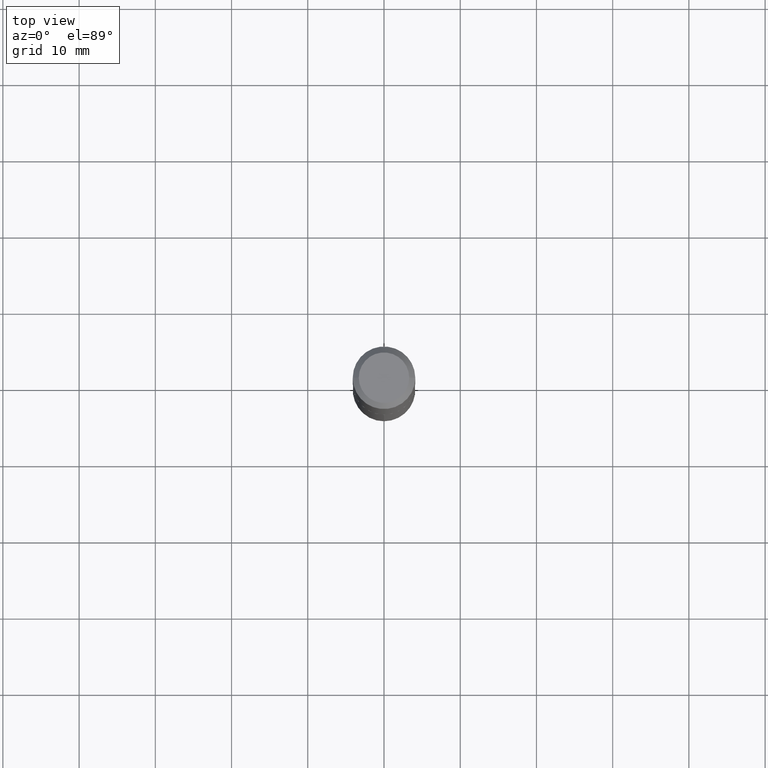
[diagram: clean part render]
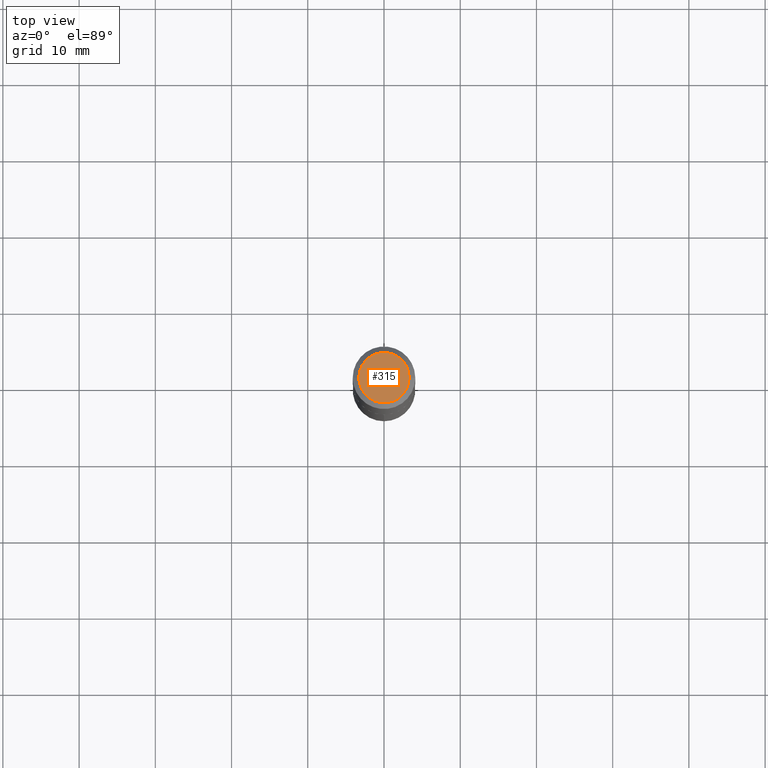
[diagram: same view with one face highlighted and labeled with its STEP entity id]
A machine part, top view. The second image highlights one B-rep face of the part: STEP entity #315.
In plain terms, the highlighted planar face has unit normal (0, -0, -1).
Its self-contained STEP definition (entity closure, byte-faithful):
#14 = VERTEX_POINT ( 'NONE', #354 ) ;
#22 = ORIENTED_EDGE ( 'NONE', *, *, #34, .T. ) ;
#24 = DIRECTION ( 'NONE',  ( 2.438088387897960049E-29, -3.491481338843145188E-15, -1.000000000000000000 ) ) ;
#34 = EDGE_CURVE ( 'NONE', #14, #119, #177, .T. ) ;
#43 = EDGE_CURVE ( 'NONE', #119, #14, #256, .T. ) ;
#51 = EDGE_LOOP ( 'NONE', ( #122, #22 ) ) ;
#77 = DIRECTION ( 'NONE',  ( -1.000000000000000000, 6.982962677686265922E-15, -4.876176775795935793E-29 ) ) ;
#119 = VERTEX_POINT ( 'NONE', #368 ) ;
#122 = ORIENTED_EDGE ( 'NONE', *, *, #43, .T. ) ;
#149 = AXIS2_PLACEMENT_3D ( 'NONE', #264, #24, #77 ) ;
#163 = AXIS2_PLACEMENT_3D ( 'NONE', #248, #365, #336 ) ;
#177 = CIRCLE ( 'NONE', #163, 0.1302500000000000047 ) ;
#197 = FACE_OUTER_BOUND ( 'NONE', #51, .T. ) ;
#238 = PLANE ( 'NONE',  #149 ) ;
#248 = CARTESIAN_POINT ( 'NONE',  ( -1.048192441068269648E-47, 1.496541006063948366E-33, 4.286263797015758030E-19 ) ) ;
#256 = CIRCLE ( 'NONE', #305, 0.1302500000000000047 ) ;
#264 = CARTESIAN_POINT ( 'NONE',  ( -5.240962205341348242E-48, 7.482705030319741831E-34, 2.143131898507879015E-19 ) ) ;
#296 = DIRECTION ( 'NONE',  ( -2.445468806185136597E-29, 3.491481338843145583E-15, 1.000000000000000000 ) ) ;
#305 = AXIS2_PLACEMENT_3D ( 'NONE', #333, #296, #326 ) ;
#315 = ADVANCED_FACE ( 'NONE', ( #197 ), #238, .F. ) ;
#326 = DIRECTION ( 'NONE',  ( 1.000000000000000000, -6.982962677686266711E-15, 4.876168088827840652E-29 ) ) ;
#333 = CARTESIAN_POINT ( 'NONE',  ( -1.048192441068269648E-47, 1.496541006063948366E-33, 4.286263797015758030E-19 ) ) ;
#336 = DIRECTION ( 'NONE',  ( 1.000000000000000000, -6.982962677686266711E-15, 4.876168088827840652E-29 ) ) ;
#354 = CARTESIAN_POINT ( 'NONE',  ( 0.1302500000000000047, -1.055329541344346597E-15, 4.286263797084456915E-19 ) ) ;
#365 = DIRECTION ( 'NONE',  ( -2.445468806185136597E-29, 3.491481338843145583E-15, 1.000000000000000000 ) ) ;
#368 = CARTESIAN_POINT ( 'NONE',  ( -0.1302500000000000047, 9.640852846880596613E-16, 4.286263796950244635E-19 ) ) ;